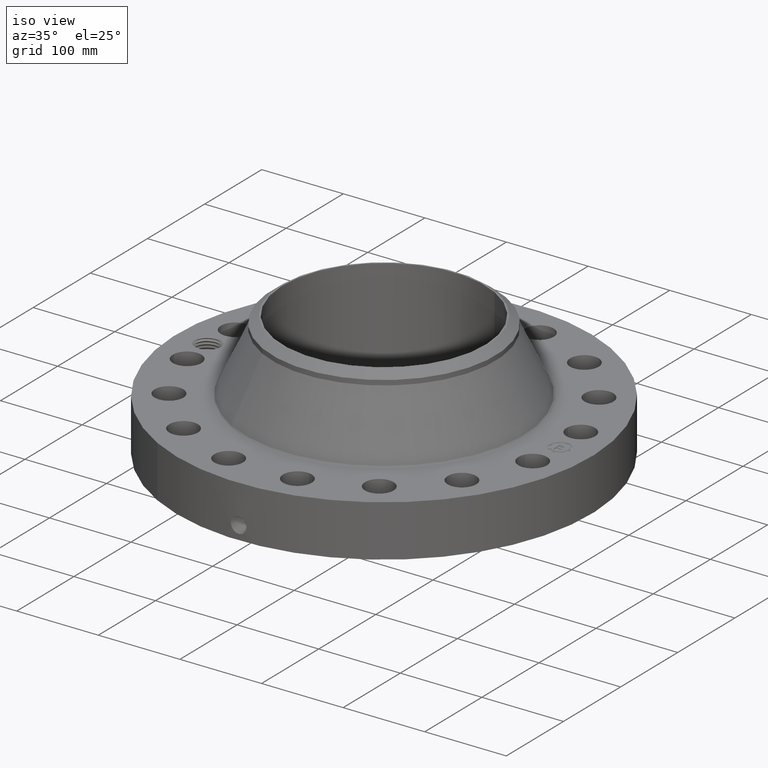
[diagram: clean part render]
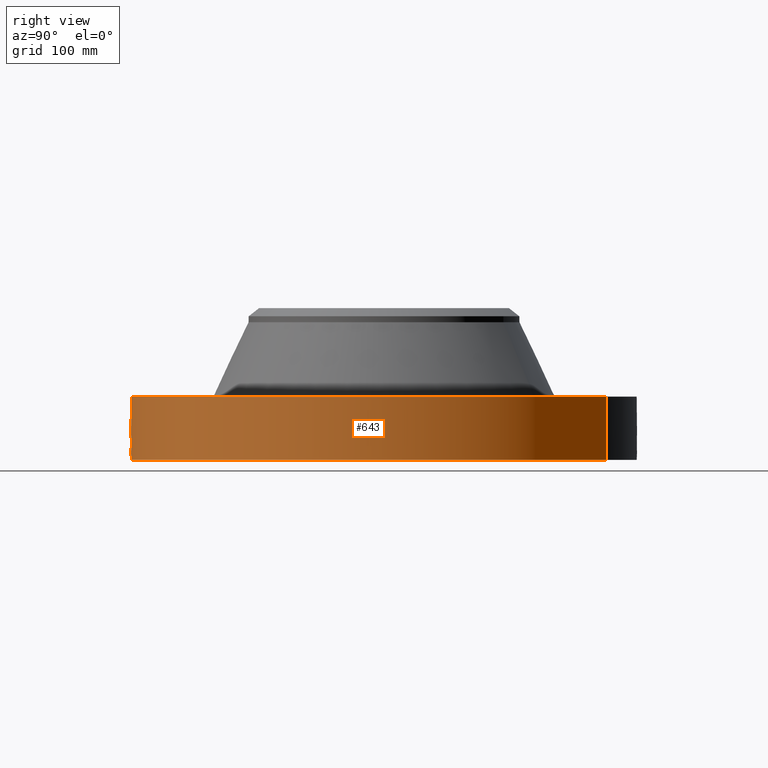
[diagram: tour spotlight — one face highlighted and labeled with its STEP entity id]
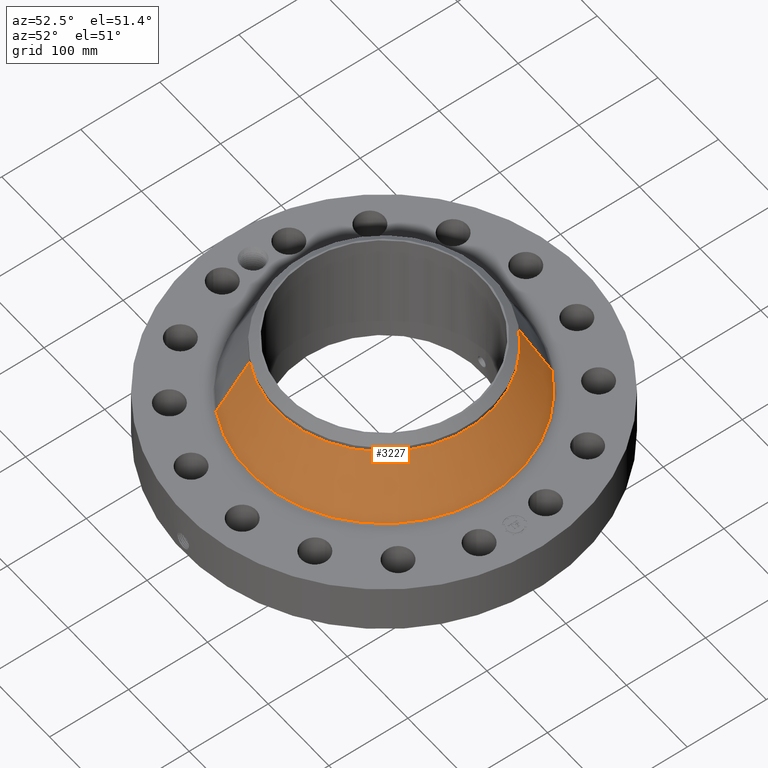
[diagram: tour spotlight — one face highlighted and labeled with its STEP entity id]
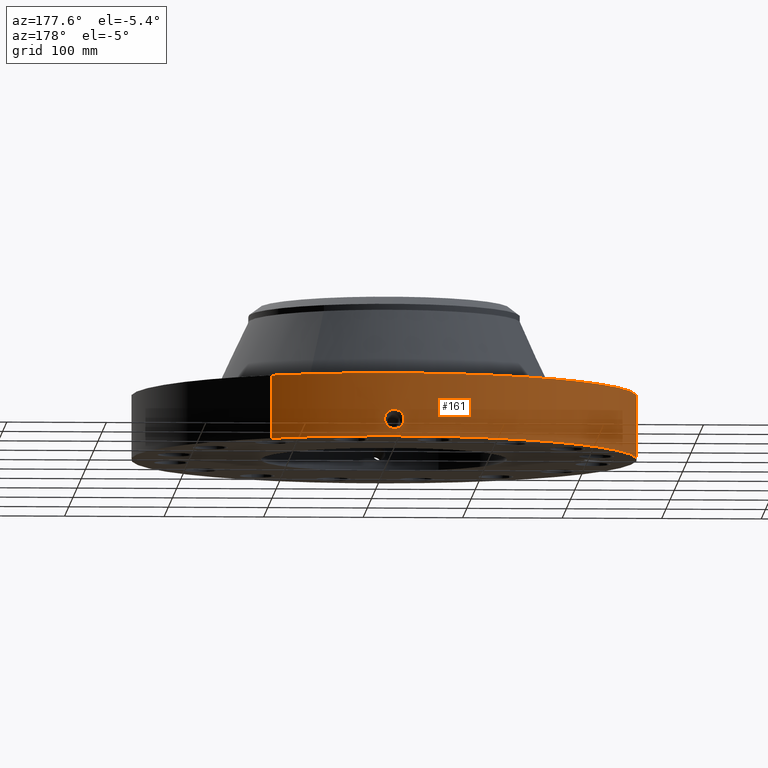
[diagram: tour spotlight — one face highlighted and labeled with its STEP entity id]
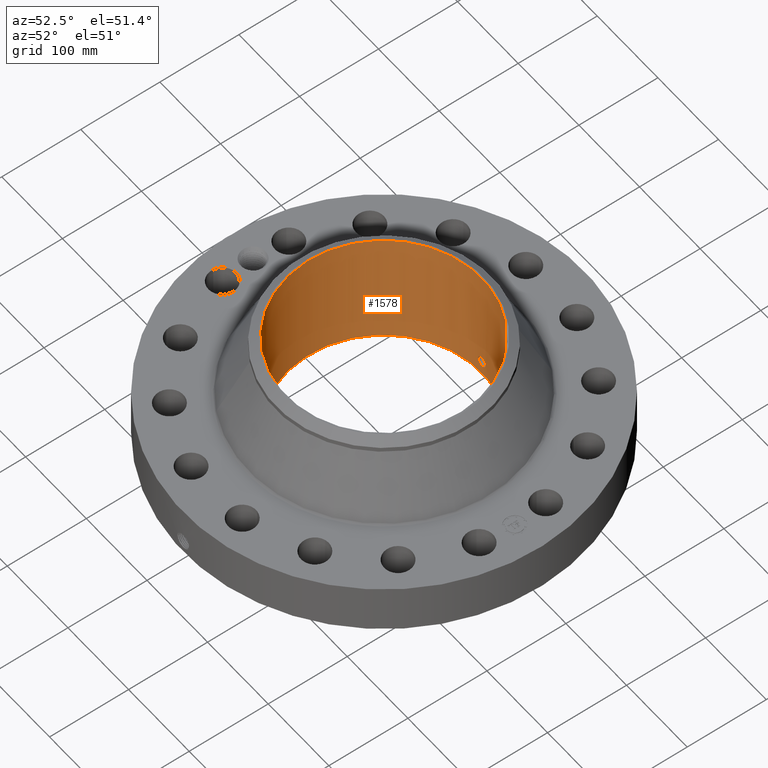
[diagram: tour spotlight — one face highlighted and labeled with its STEP entity id]
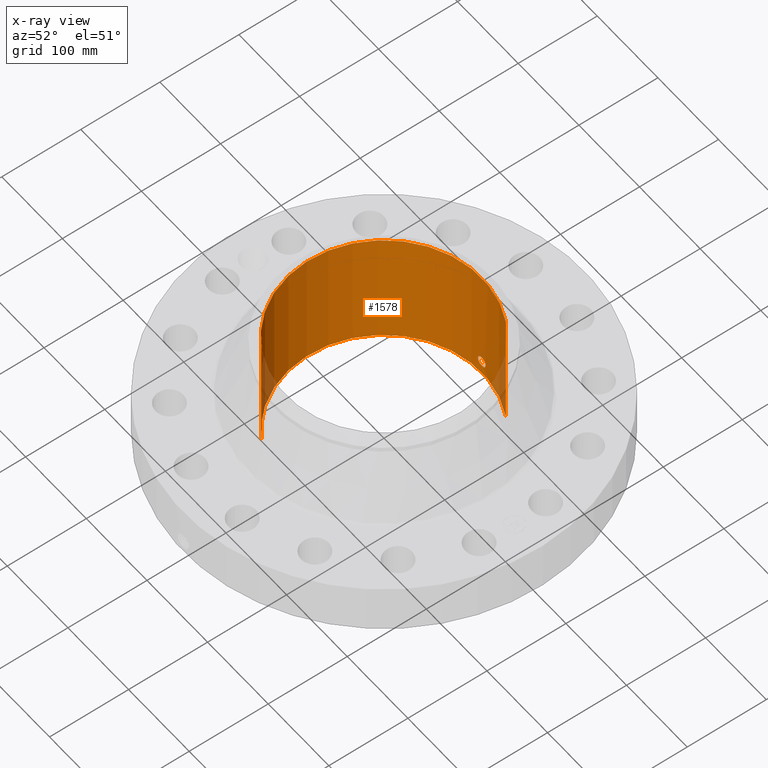
[diagram: x-ray of the same camera — body ghosted, this tour face saturated]
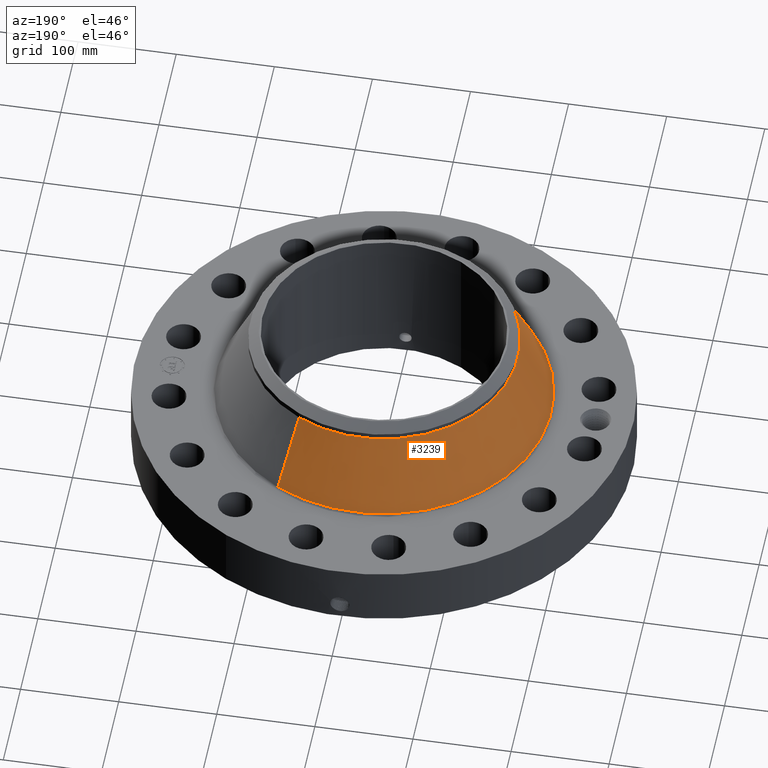
[diagram: tour spotlight — one face highlighted and labeled with its STEP entity id]
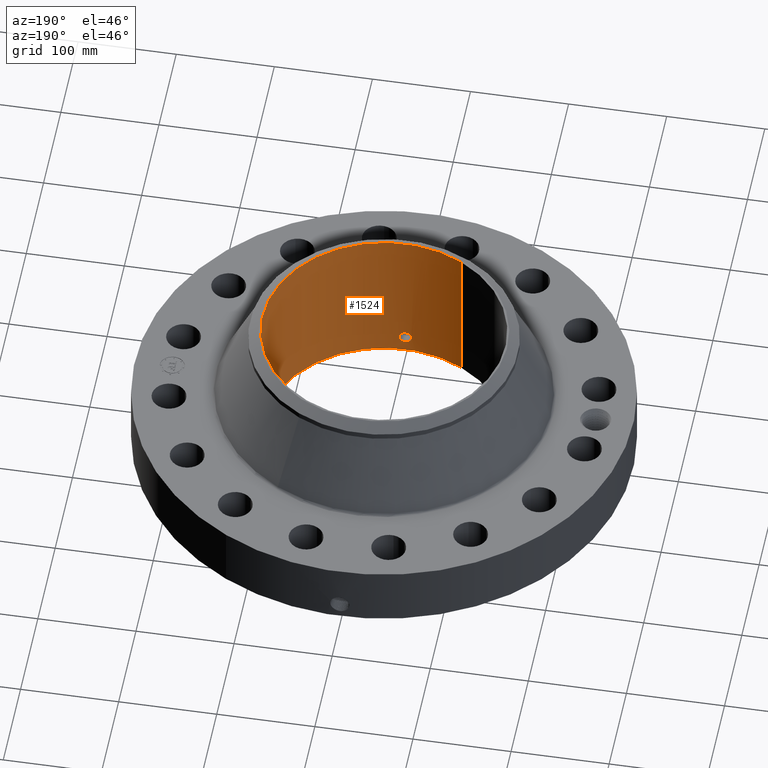
[diagram: tour spotlight — one face highlighted and labeled with its STEP entity id]
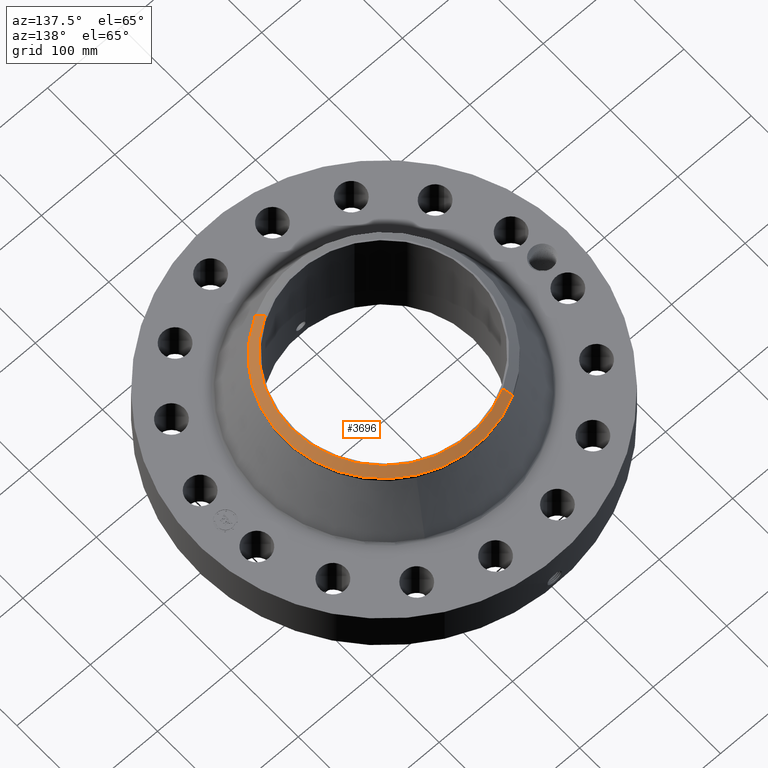
[diagram: tour spotlight — one face highlighted and labeled with its STEP entity id]
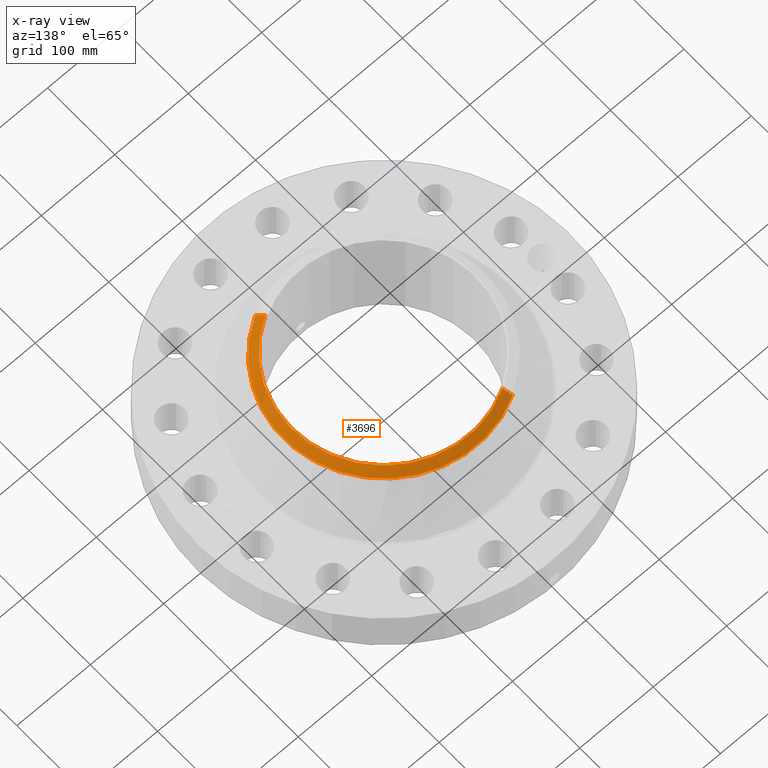
[diagram: x-ray of the same camera — body ghosted, this tour face saturated]
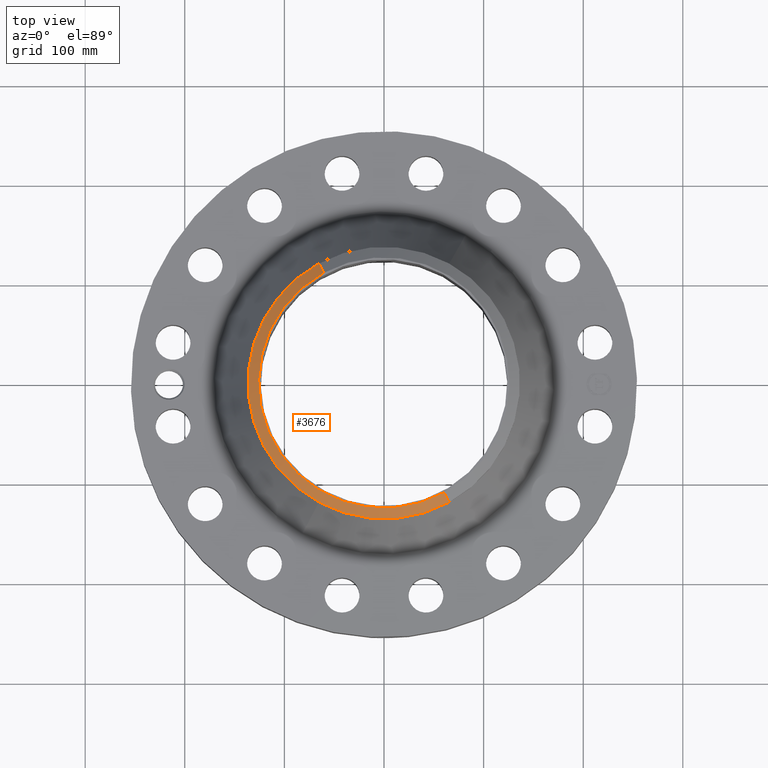
[diagram: tour spotlight — one face highlighted and labeled with its STEP entity id]
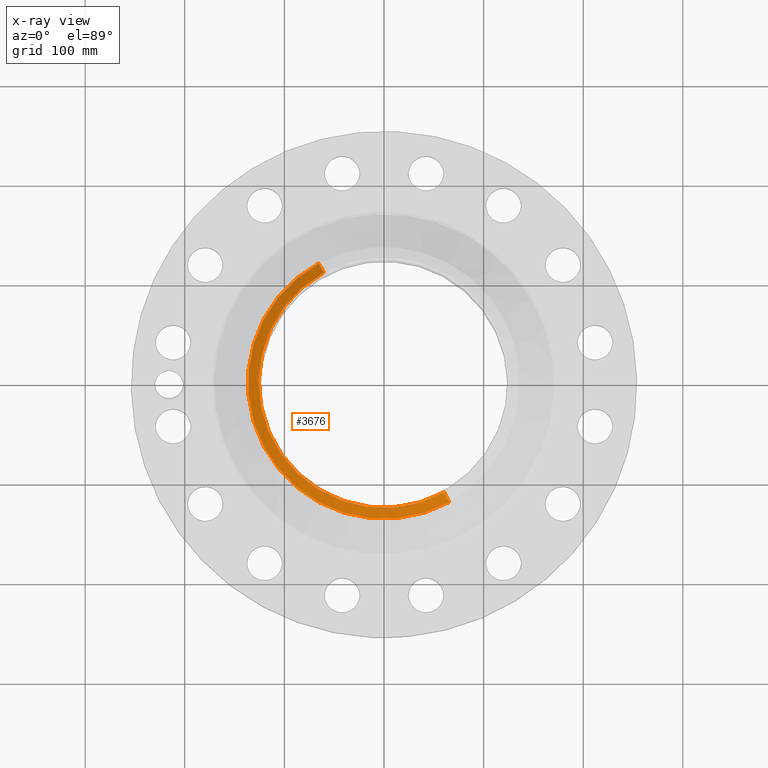
[diagram: x-ray of the same camera — body ghosted, this tour face saturated]
A machine part: a face-by-face anatomy tour. The part has 799 B-rep faces; the first image is the clean iso view, then the 8 largest visible faces are spotlighted one at a time (largest first), each with its STEP entity span.

Face 1 — right view, entity #643. In plain terms, the highlighted cylindrical surface (partial cylindrical patch) has radius 254 mm, axis along (0, 0, -1).
Definition (entity closure, byte-faithful):
#38=AXIS2_PLACEMENT_3D('Cylinder Axis2P3D',#35,#36,#37) ;
#169=AXIS2_PLACEMENT_3D('Circle Axis2P3D',#167,#168,$) ;
#547=AXIS2_PLACEMENT_3D('Circle Axis2P3D',#545,#546,$) ;
#35=CARTESIAN_POINT('Axis2P3D Location',(0.,0.,3.25000000001)) ;
#44=CARTESIAN_POINT('Vertex',(-4.79425538606,-8.77582561894,0.250000000001)) ;
#46=CARTESIAN_POINT('Vertex',(4.79425538606,8.77582561894,0.250000000001)) ;
#49=CARTESIAN_POINT('Line Origine',(-4.79425538606,-8.77582561894,1.50000000001)) ;
#53=CARTESIAN_POINT('Vertex',(-4.79425538606,-8.77582561894,2.75000000001)) ;
#60=CARTESIAN_POINT('Vertex',(4.79425538606,8.77582561894,2.75000000001)) ;
#63=CARTESIAN_POINT('Line Origine',(4.79425538606,8.77582561894,1.50000000001)) ;
#167=CARTESIAN_POINT('Axis2P3D Location',(0.,0.,0.250000000001)) ;
#545=CARTESIAN_POINT('Axis2P3D Location',(0.,0.,2.75000000001)) ;
#557=CARTESIAN_POINT('Control Point',(0.0572087903571,-9.99983635642,1.28946211996)) ;
#558=CARTESIAN_POINT('Control Point',(0.0385429305251,-9.99994314329,1.29252128305)) ;
#559=CARTESIAN_POINT('Control Point',(0.0196311006271,-9.99999861993,1.29408017662)) ;
#560=CARTESIAN_POINT('Control Point',(0.000716081786629,-9.9999999744,1.29411849926)) ;
#561=CARTESIAN_POINT('Vertex',(0.0571959374547,-9.99983668649,1.28946450802)) ;
#563=CARTESIAN_POINT('Vertex',(0.000715972764826,-9.99999997441,1.29411850972)) ;
#567=CARTESIAN_POINT('Control Point',(0.0571958405082,-9.99983643049,1.2894639435)) ;
#568=CARTESIAN_POINT('Control Point',(0.0969230263222,-9.9996092038,1.2847577243)) ;
#569=CARTESIAN_POINT('Control Point',(0.135932013826,-9.99914036429,1.27280908331)) ;
#570=CARTESIAN_POINT('Control Point',(0.171781099398,-9.99852445387,1.25447443216)) ;
#571=CARTESIAN_POINT('Vertex',(0.171781099398,-9.99852445387,1.25447443216)) ;
#575=CARTESIAN_POINT('Control Point',(0.0304791095549,-9.99995355113,0.531149434171)) ;
#576=CARTESIAN_POINT('Control Point',(0.0869240682533,-9.99978151112,0.538316765261)) ;
#577=CARTESIAN_POINT('Control Point',(0.141781990799,-9.99921604856,0.555924123744)) ;
#578=CARTESIAN_POINT('Control Point',(0.192346113245,-9.99830847247,0.58348462472)) ;
#579=CARTESIAN_POINT('Control Point',(0.265759526305,-9.99658103479,0.642901876031)) ;
#580=CARTESIAN_POINT('Control Point',(0.317976337837,-9.9949715316,0.719378431672)) ;
#581=CARTESIAN_POINT('Control Point',(0.335086714043,-9.99439872702,0.752047613138)) ;
#582=CARTESIAN_POINT('Control Point',(0.369056282311,-9.99321086053,0.840252235038)) ;
#583=CARTESIAN_POINT('Control Point',(0.376110289052,-9.99291610853,0.934477107144)) ;
#584=CARTESIAN_POINT('Control Point',(0.369959799517,-9.99316023875,0.992001440313)) ;
#585=CARTESIAN_POINT('Control Point',(0.340413446907,-9.99427827024,1.09120350967)) ;
#586=CARTESIAN_POINT('Control Point',(0.280678332334,-9.9961187959,1.17435913729)) ;
#587=CARTESIAN_POINT('Control Point',(0.248537284244,-9.99700573284,1.20702901608)) ;
#588=CARTESIAN_POINT('Control Point',(0.211772273186,-9.99783737971,1.23402135039)) ;
#589=CARTESIAN_POINT('Control Point',(0.171781099398,-9.99852445387,1.25447443216)) ;
#590=CARTESIAN_POINT('Vertex',(0.0304791095549,-9.99995355113,0.531149434171)) ;
#594=CARTESIAN_POINT('Control Point',(0.0304791095549,-9.99995355113,0.531149434171)) ;
#595=CARTESIAN_POINT('Control Point',(0.0203138280101,-9.99998453414,0.530868868491)) ;
#596=CARTESIAN_POINT('Control Point',(0.010142822142,-10.0000000028,0.53094410762)) ;
#597=CARTESIAN_POINT('Control Point',(-2.72878353386E-006,-10.,0.531374667805)) ;
#598=CARTESIAN_POINT('Vertex',(-2.72878354146E-006,-10.,0.531374667805)) ;
#602=CARTESIAN_POINT('Control Point',(-0.193088684827,-9.99813566424,0.586563835071)) ;
#603=CARTESIAN_POINT('Control Point',(-0.149184542095,-9.99898356164,0.561542966677)) ;
#604=CARTESIAN_POINT('Control Point',(-0.101153268022,-9.99965493009,0.543607028523)) ;
#605=CARTESIAN_POINT('Control Point',(-0.0508186828457,-9.99999998617,0.533531210518)) ;
#606=CARTESIAN_POINT('Control Point',(-2.72878355165E-006,-10.,0.531374667805)) ;
#607=CARTESIAN_POINT('Vertex',(-0.193088684827,-9.99813566424,0.586563835071)) ;
#611=CARTESIAN_POINT('Control Point',(-0.193088684827,-9.99813566424,0.586563835071)) ;
#612=CARTESIAN_POINT('Control Point',(-0.22200236607,-9.99757726967,0.603041673926)) ;
#613=CARTESIAN_POINT('Control Point',(-0.249242458499,-9.99694663764,0.622399687612)) ;
#614=CARTESIAN_POINT('Control Point',(-0.274404324275,-9.9962756441,0.644458262444)) ;
#615=CARTESIAN_POINT('Control Point',(-0.341053091543,-9.99430729828,0.716427952042)) ;
#616=CARTESIAN_POINT('Control Point',(-0.383384402225,-9.99268352973,0.806296315222)) ;
#617=CARTESIAN_POINT('Control Point',(-0.398208488589,-9.992055228,0.870788230889)) ;
#618=CARTESIAN_POINT('Control Point',(-0.398820868103,-9.9920728064,0.997725505462)) ;
#619=CARTESIAN_POINT('Control Point',(-0.349108773991,-9.99395183229,1.11278780639)) ;
#620=CARTESIAN_POINT('Control Point',(-0.314057457436,-9.99519357458,1.16248017222)) ;
#621=CARTESIAN_POINT('Control Point',(-0.235623947196,-9.99747709452,1.23687454099)) ;
#622=CARTESIAN_POINT('Control Point',(-0.138518371338,-9.99918909735,1.27948531937)) ;
#623=CARTESIAN_POINT('Control Point',(-0.0927588070752,-9.99973433444,1.29155503955)) ;
#624=CARTESIAN_POINT('Control Point',(-0.0460961964384,-10.0000001193,1.29641422489)) ;
#625=CARTESIAN_POINT('Control Point',(2.58579355292E-005,-10.,1.29415298432)) ;
#626=CARTESIAN_POINT('Vertex',(2.5857935539E-005,-10.,1.29415298432)) ;
#630=CARTESIAN_POINT('Control Point',(0.000715972754869,-9.99999997441,1.2941185097)) ;
#631=CARTESIAN_POINT('Control Point',(0.000370939523204,-9.99999999911,1.29413606591)) ;
#632=CARTESIAN_POINT('Control Point',(2.58579410707E-005,-10.,1.29415298431)) ;
#36=DIRECTION('Axis2P3D Direction',(0.,0.,-0.0393700787402)) ;
#37=DIRECTION('Axis2P3D XDirection',(0.0188750212049,0.0345504945626,0.)) ;
#50=DIRECTION('Vector Direction',(0.,0.,-0.0393700787402)) ;
#64=DIRECTION('Vector Direction',(0.,0.,-0.0393700787402)) ;
#168=DIRECTION('Axis2P3D Direction',(0.,0.,-0.0393700787402)) ;
#546=DIRECTION('Axis2P3D Direction',(0.,0.,-0.0393700787402)) ;
#51=VECTOR('Line Direction',#50,0.0393700787402) ;
#65=VECTOR('Line Direction',#64,0.0393700787402) ;
#551=ORIENTED_EDGE('',*,*,#171,.F.) ;
#552=ORIENTED_EDGE('',*,*,#67,.T.) ;
#553=ORIENTED_EDGE('',*,*,#549,.T.) ;
#554=ORIENTED_EDGE('',*,*,#55,.F.) ;
#635=ORIENTED_EDGE('',*,*,#565,.F.) ;
#636=ORIENTED_EDGE('',*,*,#573,.T.) ;
#637=ORIENTED_EDGE('',*,*,#592,.F.) ;
#638=ORIENTED_EDGE('',*,*,#600,.T.) ;
#639=ORIENTED_EDGE('',*,*,#609,.F.) ;
#640=ORIENTED_EDGE('',*,*,#628,.T.) ;
#641=ORIENTED_EDGE('',*,*,#633,.F.) ;
#642=FACE_BOUND('',#634,.T.) ;
#643=ADVANCED_FACE('PartBody',(#555,#642),#39,.T.) ;
#556=B_SPLINE_CURVE_WITH_KNOTS('',3,(#557,#558,#559,#560),.UNSPECIFIED.,.F.,.U.,(4,4),(4.42284677538,6.52129611799),.UNSPECIFIED.) ;
#566=B_SPLINE_CURVE_WITH_KNOTS('',3,(#567,#568,#569,#570),.UNSPECIFIED.,.F.,.U.,(4,4),(0.,4.49502347419),.UNSPECIFIED.) ;
#574=B_SPLINE_CURVE_WITH_KNOTS('',5,(#575,#576,#577,#578,#579,#580,#581,#582,#583,#584,#585,#586,#587,#588,#589),.UNSPECIFIED.,.F.,.U.,(6,3,3,3,6),(0.,9.88848366052,16.4590866122,26.8430280879,35.2003434392),.UNSPECIFIED.) ;
#593=B_SPLINE_CURVE_WITH_KNOTS('',3,(#594,#595,#596,#597),.UNSPECIFIED.,.F.,.U.,(4,4),(0.,1.0603287254),.UNSPECIFIED.) ;
#601=B_SPLINE_CURVE_WITH_KNOTS('',4,(#602,#603,#604,#605,#606),.UNSPECIFIED.,.F.,.U.,(5,5),(0.,7.08114865541),.UNSPECIFIED.) ;
#610=B_SPLINE_CURVE_WITH_KNOTS('',5,(#611,#612,#613,#614,#615,#616,#617,#618,#619,#620,#621,#622,#623,#624,#625),.UNSPECIFIED.,.F.,.U.,(6,3,3,3,6),(0.,5.82923559638,17.1276621437,27.7869785433,36.4081471789),.UNSPECIFIED.) ;
#629=B_SPLINE_CURVE_WITH_KNOTS('',2,(#630,#631,#632),.UNSPECIFIED.,.F.,.U.,(3,3),(1.03888409227,1.06468525564),.UNSPECIFIED.) ;
#170=CIRCLE('generated circle',#169,10.) ;
#548=CIRCLE('generated circle',#547,10.) ;
#39=CYLINDRICAL_SURFACE('generated cylinder',#38,10.) ;
#55=EDGE_CURVE('',#45,#54,#52,.F.) ;
#67=EDGE_CURVE('',#47,#61,#66,.F.) ;
#171=EDGE_CURVE('',#47,#45,#170,.T.) ;
#549=EDGE_CURVE('',#61,#54,#548,.T.) ;
#565=EDGE_CURVE('',#562,#564,#556,.T.) ;
#573=EDGE_CURVE('',#562,#572,#566,.T.) ;
#592=EDGE_CURVE('',#591,#572,#574,.T.) ;
#600=EDGE_CURVE('',#591,#599,#593,.T.) ;
#609=EDGE_CURVE('',#608,#599,#601,.T.) ;
#628=EDGE_CURVE('',#608,#627,#610,.T.) ;
#633=EDGE_CURVE('',#564,#627,#629,.T.) ;
#550=EDGE_LOOP('',(#551,#552,#553,#554)) ;
#634=EDGE_LOOP('',(#635,#636,#637,#638,#639,#640,#641)) ;
#555=FACE_OUTER_BOUND('',#550,.T.) ;
#52=LINE('Line',#49,#51) ;
#66=LINE('Line',#63,#65) ;
#45=VERTEX_POINT('',#44) ;
#47=VERTEX_POINT('',#46) ;
#54=VERTEX_POINT('',#53) ;
#61=VERTEX_POINT('',#60) ;
#562=VERTEX_POINT('',#561) ;
#564=VERTEX_POINT('',#563) ;
#572=VERTEX_POINT('',#571) ;
#591=VERTEX_POINT('',#590) ;
#599=VERTEX_POINT('',#598) ;
#608=VERTEX_POINT('',#607) ;
#627=VERTEX_POINT('',#626) ;

Face 2 — auxiliary view, entity #3227. In plain terms, the highlighted conical surface has half-angle 25.061 deg.
Definition (entity closure, byte-faithful):
#2420=AXIS2_PLACEMENT_3D('Circle Axis2P3D',#2418,#2419,$) ;
#3200=AXIS2_PLACEMENT_3D('Cone Axis2P3D',#3197,#3198,#3199) ;
#3211=AXIS2_PLACEMENT_3D('Circle Axis2P3D',#3209,#3210,$) ;
#2415=CARTESIAN_POINT('Vertex',(3.22061577254,5.89529762799,2.81917027635)) ;
#2418=CARTESIAN_POINT('Axis2P3D Location',(0.,0.,2.81917027635)) ;
#2422=CARTESIAN_POINT('Vertex',(-3.22061577254,-5.89529762799,2.81917027635)) ;
#3197=CARTESIAN_POINT('Axis2P3D Location',(0.,0.,5.69053548147)) ;
#3202=CARTESIAN_POINT('Line Origine',(2.89876402128,5.30615194909,4.25485287891)) ;
#3206=CARTESIAN_POINT('Vertex',(2.57691227001,4.71700627018,5.69053548147)) ;
#3209=CARTESIAN_POINT('Axis2P3D Location',(0.,0.,5.69053548147)) ;
#3213=CARTESIAN_POINT('Vertex',(-2.57691227001,-4.71700627018,5.69053548147)) ;
#3216=CARTESIAN_POINT('Line Origine',(-2.89876402128,-5.30615194909,4.25485287891)) ;
#2419=DIRECTION('Axis2P3D Direction',(0.,0.,-0.0393700787402)) ;
#3198=DIRECTION('Axis2P3D Direction',(0.,0.,-0.0393700787402)) ;
#3199=DIRECTION('Axis2P3D XDirection',(-0.0188750212049,-0.0345504945626,0.)) ;
#3203=DIRECTION('Vector Direction',(0.00799510093218,0.0146349340902,-0.0356637093593)) ;
#3210=DIRECTION('Axis2P3D Direction',(0.,0.,-0.0393700787402)) ;
#3217=DIRECTION('Vector Direction',(-0.00799510093218,-0.0146349340902,-0.0356637093593)) ;
#3204=VECTOR('Line Direction',#3203,0.0393700787402) ;
#3218=VECTOR('Line Direction',#3217,0.0393700787402) ;
#3222=ORIENTED_EDGE('',*,*,#2424,.F.) ;
#3223=ORIENTED_EDGE('',*,*,#3208,.T.) ;
#3224=ORIENTED_EDGE('',*,*,#3215,.T.) ;
#3225=ORIENTED_EDGE('',*,*,#3220,.F.) ;
#3227=ADVANCED_FACE('PartBody',(#3226),#3201,.T.) ;
#2421=CIRCLE('generated circle',#2420,6.71765584687) ;
#3212=CIRCLE('generated circle',#3211,5.37500000002) ;
#3201=CONICAL_SURFACE('Cone',#3200,5.37500000002,0.437394874199) ;
#2424=EDGE_CURVE('',#2416,#2423,#2421,.T.) ;
#3208=EDGE_CURVE('',#2416,#3207,#3205,.F.) ;
#3215=EDGE_CURVE('',#3207,#3214,#3212,.T.) ;
#3220=EDGE_CURVE('',#2423,#3214,#3219,.F.) ;
#3221=EDGE_LOOP('',(#3222,#3223,#3224,#3225)) ;
#3226=FACE_OUTER_BOUND('',#3221,.T.) ;
#3205=LINE('Line',#3202,#3204) ;
#3219=LINE('Line',#3216,#3218) ;
#2416=VERTEX_POINT('',#2415) ;
#2423=VERTEX_POINT('',#2422) ;
#3207=VERTEX_POINT('',#3206) ;
#3214=VERTEX_POINT('',#3213) ;

Face 3 — auxiliary view, entity #161. In plain terms, the highlighted cylindrical surface (partial cylindrical patch) has radius 254 mm, axis along (0, 0, -1).
Definition (entity closure, byte-faithful):
#38=AXIS2_PLACEMENT_3D('Cylinder Axis2P3D',#35,#36,#37) ;
#42=AXIS2_PLACEMENT_3D('Circle Axis2P3D',#40,#41,$) ;
#58=AXIS2_PLACEMENT_3D('Circle Axis2P3D',#56,#57,$) ;
#35=CARTESIAN_POINT('Axis2P3D Location',(0.,0.,3.25000000001)) ;
#40=CARTESIAN_POINT('Axis2P3D Location',(0.,0.,0.250000000001)) ;
#44=CARTESIAN_POINT('Vertex',(-4.79425538606,-8.77582561894,0.250000000001)) ;
#46=CARTESIAN_POINT('Vertex',(4.79425538606,8.77582561894,0.250000000001)) ;
#49=CARTESIAN_POINT('Line Origine',(-4.79425538606,-8.77582561894,1.50000000001)) ;
#53=CARTESIAN_POINT('Vertex',(-4.79425538606,-8.77582561894,2.75000000001)) ;
#56=CARTESIAN_POINT('Axis2P3D Location',(0.,0.,2.75000000001)) ;
#60=CARTESIAN_POINT('Vertex',(4.79425538606,8.77582561894,2.75000000001)) ;
#63=CARTESIAN_POINT('Line Origine',(4.79425538606,8.77582561894,1.50000000001)) ;
#75=CARTESIAN_POINT('Control Point',(-0.0572087903623,9.99983635642,1.28946211995)) ;
#76=CARTESIAN_POINT('Control Point',(-0.038542930521,9.99994314329,1.29252128305)) ;
#77=CARTESIAN_POINT('Control Point',(-0.0196311006209,9.99999861993,1.29408017662)) ;
#78=CARTESIAN_POINT('Control Point',(-0.000716081786808,9.9999999744,1.29411849926)) ;
#79=CARTESIAN_POINT('Vertex',(-0.0571959374547,9.99983668649,1.28946450802)) ;
#81=CARTESIAN_POINT('Vertex',(-0.000715972764827,9.99999997441,1.29411850972)) ;
#85=CARTESIAN_POINT('Control Point',(-0.0571958405082,9.99983643049,1.2894639435)) ;
#86=CARTESIAN_POINT('Control Point',(-0.0969230263198,9.9996092038,1.2847577243)) ;
#87=CARTESIAN_POINT('Control Point',(-0.135932013828,9.99914036429,1.27280908331)) ;
#88=CARTESIAN_POINT('Control Point',(-0.171781099398,9.99852445387,1.25447443216)) ;
#89=CARTESIAN_POINT('Vertex',(-0.171781099398,9.99852445387,1.25447443216)) ;
#93=CARTESIAN_POINT('Control Point',(-0.0304791095549,9.99995355113,0.531149434171)) ;
#94=CARTESIAN_POINT('Control Point',(-0.0869240682089,9.99978151112,0.538316765256)) ;
#95=CARTESIAN_POINT('Control Point',(-0.141781990712,9.99921604856,0.55592412372)) ;
#96=CARTESIAN_POINT('Control Point',(-0.192346113027,9.99830847247,0.583484624591)) ;
#97=CARTESIAN_POINT('Control Point',(-0.265759526084,9.99658103479,0.642901875811)) ;
#98=CARTESIAN_POINT('Control Point',(-0.317976337652,9.99497153161,0.719378431361)) ;
#99=CARTESIAN_POINT('Control Point',(-0.33508671391,9.99439872702,0.752047612856)) ;
#100=CARTESIAN_POINT('Control Point',(-0.369056282252,9.99321086053,0.840252234737)) ;
#101=CARTESIAN_POINT('Control Point',(-0.376110289066,9.99291610853,0.934477106848)) ;
#102=CARTESIAN_POINT('Control Point',(-0.369959799591,9.99316023875,0.992001439942)) ;
#103=CARTESIAN_POINT('Control Point',(-0.340413447041,9.99427827023,1.09120350942)) ;
#104=CARTESIAN_POINT('Control Point',(-0.280678332466,9.9961187959,1.17435913716)) ;
#105=CARTESIAN_POINT('Control Point',(-0.248537284365,9.99700573284,1.20702901599)) ;
#106=CARTESIAN_POINT('Control Point',(-0.211772273251,9.99783737971,1.23402135036)) ;
#107=CARTESIAN_POINT('Control Point',(-0.171781099398,9.99852445387,1.25447443216)) ;
#108=CARTESIAN_POINT('Vertex',(-0.0304791095549,9.99995355113,0.531149434171)) ;
#112=CARTESIAN_POINT('Control Point',(-0.0304791095549,9.99995355113,0.531149434171)) ;
#113=CARTESIAN_POINT('Control Point',(-0.0203138280101,9.99998453414,0.530868868491)) ;
#114=CARTESIAN_POINT('Control Point',(-0.010142822142,10.0000000028,0.53094410762)) ;
#115=CARTESIAN_POINT('Control Point',(2.72878355928E-006,10.,0.531374667805)) ;
#116=CARTESIAN_POINT('Vertex',(2.7287835403E-006,10.,0.531374667805)) ;
#120=CARTESIAN_POINT('Control Point',(0.193088684827,9.99813566424,0.586563835071)) ;
#121=CARTESIAN_POINT('Control Point',(0.149184542092,9.99898356164,0.561542966675)) ;
#122=CARTESIAN_POINT('Control Point',(0.101153268022,9.99965493009,0.543607028522)) ;
#123=CARTESIAN_POINT('Control Point',(0.0508186828489,9.99999998617,0.533531210518)) ;
#124=CARTESIAN_POINT('Control Point',(2.72878355927E-006,10.,0.531374667805)) ;
#125=CARTESIAN_POINT('Vertex',(0.193088684827,9.99813566424,0.586563835071)) ;
#129=CARTESIAN_POINT('Control Point',(0.193088684827,9.99813566424,0.586563835071)) ;
#130=CARTESIAN_POINT('Control Point',(0.222002366156,9.99757726967,0.603041673975)) ;
#131=CARTESIAN_POINT('Control Point',(0.249242458661,9.99694663764,0.622399687727)) ;
#132=CARTESIAN_POINT('Control Point',(0.274404324443,9.9962756441,0.644458262588)) ;
#133=CARTESIAN_POINT('Control Point',(0.341053091753,9.99430729828,0.716427952335)) ;
#134=CARTESIAN_POINT('Control Point',(0.383384402384,9.99268352973,0.806296315693)) ;
#135=CARTESIAN_POINT('Control Point',(0.398208488645,9.99205522799,0.870788231226)) ;
#136=CARTESIAN_POINT('Control Point',(0.398820868035,9.9920728064,0.997725505823)) ;
#137=CARTESIAN_POINT('Control Point',(0.349108773796,9.9939518323,1.11278780671)) ;
#138=CARTESIAN_POINT('Control Point',(0.31405745715,9.99519357459,1.16248017255)) ;
#139=CARTESIAN_POINT('Control Point',(0.235623946911,9.99747709452,1.23687454117)) ;
#140=CARTESIAN_POINT('Control Point',(0.138518371119,9.99918909735,1.27948531942)) ;
#141=CARTESIAN_POINT('Control Point',(0.092758806898,9.99973433444,1.29155503957)) ;
#142=CARTESIAN_POINT('Control Point',(0.0460961963509,10.0000001193,1.29641422489)) ;
#143=CARTESIAN_POINT('Control Point',(-2.5857935566E-005,10.,1.29415298432)) ;
#144=CARTESIAN_POINT('Vertex',(-2.58579355401E-005,10.,1.29415298432)) ;
#148=CARTESIAN_POINT('Control Point',(-0.000715972754886,9.99999997441,1.2941185097)) ;
#149=CARTESIAN_POINT('Control Point',(-0.000370939523228,9.99999999911,1.29413606591)) ;
#150=CARTESIAN_POINT('Control Point',(-2.58579411007E-005,10.,1.29415298431)) ;
#36=DIRECTION('Axis2P3D Direction',(0.,0.,-0.0393700787402)) ;
#37=DIRECTION('Axis2P3D XDirection',(0.0188750212049,0.0345504945626,0.)) ;
#41=DIRECTION('Axis2P3D Direction',(0.,0.,-0.0393700787402)) ;
#50=DIRECTION('Vector Direction',(0.,0.,-0.0393700787402)) ;
#57=DIRECTION('Axis2P3D Direction',(0.,0.,-0.0393700787402)) ;
#64=DIRECTION('Vector Direction',(0.,0.,-0.0393700787402)) ;
#51=VECTOR('Line Direction',#50,0.0393700787402) ;
#65=VECTOR('Line Direction',#64,0.0393700787402) ;
#69=ORIENTED_EDGE('',*,*,#48,.F.) ;
#70=ORIENTED_EDGE('',*,*,#55,.T.) ;
#71=ORIENTED_EDGE('',*,*,#62,.T.) ;
#72=ORIENTED_EDGE('',*,*,#67,.F.) ;
#153=ORIENTED_EDGE('',*,*,#83,.F.) ;
#154=ORIENTED_EDGE('',*,*,#91,.T.) ;
#155=ORIENTED_EDGE('',*,*,#110,.F.) ;
#156=ORIENTED_EDGE('',*,*,#118,.T.) ;
#157=ORIENTED_EDGE('',*,*,#127,.F.) ;
#158=ORIENTED_EDGE('',*,*,#146,.T.) ;
#159=ORIENTED_EDGE('',*,*,#151,.F.) ;
#160=FACE_BOUND('',#152,.T.) ;
#161=ADVANCED_FACE('PartBody',(#73,#160),#39,.T.) ;
#74=B_SPLINE_CURVE_WITH_KNOTS('',3,(#75,#76,#77,#78),.UNSPECIFIED.,.F.,.U.,(4,4),(4.4228467722,6.52129611388),.UNSPECIFIED.) ;
#84=B_SPLINE_CURVE_WITH_KNOTS('',3,(#85,#86,#87,#88),.UNSPECIFIED.,.F.,.U.,(4,4),(0.,4.49502347392),.UNSPECIFIED.) ;
#92=B_SPLINE_CURVE_WITH_KNOTS('',5,(#93,#94,#95,#96,#97,#98,#99,#100,#101,#102,#103,#104,#105,#106,#107),.UNSPECIFIED.,.F.,.U.,(6,3,3,3,6),(0.,9.88848365274,16.4590866018,26.8430280813,35.2003434463),.UNSPECIFIED.) ;
#111=B_SPLINE_CURVE_WITH_KNOTS('',3,(#112,#113,#114,#115),.UNSPECIFIED.,.F.,.U.,(4,4),(0.,1.0603287254),.UNSPECIFIED.) ;
#119=B_SPLINE_CURVE_WITH_KNOTS('',4,(#120,#121,#122,#123,#124),.UNSPECIFIED.,.F.,.U.,(5,5),(0.,7.08114865587),.UNSPECIFIED.) ;
#128=B_SPLINE_CURVE_WITH_KNOTS('',5,(#129,#130,#131,#132,#133,#134,#135,#136,#137,#138,#139,#140,#141,#142,#143),.UNSPECIFIED.,.F.,.U.,(6,3,3,3,6),(0.,5.82923561373,17.1276621672,27.7869785645,36.4081471838),.UNSPECIFIED.) ;
#147=B_SPLINE_CURVE_WITH_KNOTS('',2,(#148,#149,#150),.UNSPECIFIED.,.F.,.U.,(3,3),(1.03888409227,1.06468525564),.UNSPECIFIED.) ;
#43=CIRCLE('generated circle',#42,10.) ;
#59=CIRCLE('generated circle',#58,10.) ;
#39=CYLINDRICAL_SURFACE('generated cylinder',#38,10.) ;
#48=EDGE_CURVE('',#45,#47,#43,.T.) ;
#55=EDGE_CURVE('',#45,#54,#52,.F.) ;
#62=EDGE_CURVE('',#54,#61,#59,.T.) ;
#67=EDGE_CURVE('',#47,#61,#66,.F.) ;
#83=EDGE_CURVE('',#80,#82,#74,.T.) ;
#91=EDGE_CURVE('',#80,#90,#84,.T.) ;
#110=EDGE_CURVE('',#109,#90,#92,.T.) ;
#118=EDGE_CURVE('',#109,#117,#111,.T.) ;
#127=EDGE_CURVE('',#126,#117,#119,.T.) ;
#146=EDGE_CURVE('',#126,#145,#128,.T.) ;
#151=EDGE_CURVE('',#82,#145,#147,.T.) ;
#68=EDGE_LOOP('',(#69,#70,#71,#72)) ;
#152=EDGE_LOOP('',(#153,#154,#155,#156,#157,#158,#159)) ;
#73=FACE_OUTER_BOUND('',#68,.T.) ;
#52=LINE('Line',#49,#51) ;
#66=LINE('Line',#63,#65) ;
#45=VERTEX_POINT('',#44) ;
#47=VERTEX_POINT('',#46) ;
#54=VERTEX_POINT('',#53) ;
#61=VERTEX_POINT('',#60) ;
#80=VERTEX_POINT('',#79) ;
#82=VERTEX_POINT('',#81) ;
#90=VERTEX_POINT('',#89) ;
#109=VERTEX_POINT('',#108) ;
#117=VERTEX_POINT('',#116) ;
#126=VERTEX_POINT('',#125) ;
#145=VERTEX_POINT('',#144) ;

Face 4 — auxiliary view, entity #1578. An x-ray twin of the same camera follows (body ghosted, this face saturated) — the face is partly hidden behind the body. In plain terms, the highlighted cylindrical surface (partial cylindrical patch) has radius 123.825 mm, axis along (0, 0, -1).
Definition (entity closure, byte-faithful):
#267=AXIS2_PLACEMENT_3D('Circle Axis2P3D',#265,#266,$) ;
#1455=AXIS2_PLACEMENT_3D('Cylinder Axis2P3D',#1452,#1453,#1454) ;
#1527=AXIS2_PLACEMENT_3D('Circle Axis2P3D',#1525,#1526,$) ;
#260=CARTESIAN_POINT('Vertex',(2.3371995007,4.27821498923,0.250000000001)) ;
#262=CARTESIAN_POINT('Vertex',(-2.3371995007,-4.27821498923,0.250000000001)) ;
#265=CARTESIAN_POINT('Axis2P3D Location',(0.,0.,0.250000000001)) ;
#1452=CARTESIAN_POINT('Axis2P3D Location',(0.,0.,3.25000000001)) ;
#1461=CARTESIAN_POINT('Vertex',(2.3371995007,4.27821498923,6.25000000002)) ;
#1463=CARTESIAN_POINT('Vertex',(-2.3371995007,-4.27821498923,6.25000000002)) ;
#1466=CARTESIAN_POINT('Line Origine',(2.3371995007,4.27821498923,3.25000000001)) ;
#1471=CARTESIAN_POINT('Line Origine',(-2.3371995007,-4.27821498923,3.25000000001)) ;
#1525=CARTESIAN_POINT('Axis2P3D Location',(0.,0.,6.25000000002)) ;
#1537=CARTESIAN_POINT('Control Point',(0.219395640473,4.87006063136,1.05985638466)) ;
#1538=CARTESIAN_POINT('Control Point',(0.206921744631,4.87062257885,1.08268969784)) ;
#1539=CARTESIAN_POINT('Control Point',(0.191478394815,4.87127828143,1.10389846204)) ;
#1540=CARTESIAN_POINT('Control Point',(0.173345566564,4.87197707092,1.12296984661)) ;
#1541=CARTESIAN_POINT('Control Point',(0.112139222272,4.87399811607,1.17244722733)) ;
#1542=CARTESIAN_POINT('Control Point',(0.0349864891715,4.87531118116,1.1959724494)) ;
#1543=CARTESIAN_POINT('Control Point',(-0.0195554396122,4.87540934404,1.19761228032)) ;
#1544=CARTESIAN_POINT('Control Point',(-0.124139352669,4.87396423206,1.17247244666)) ;
#1545=CARTESIAN_POINT('Control Point',(-0.203183379739,4.87097270785,1.09956667949)) ;
#1546=CARTESIAN_POINT('Control Point',(-0.23216181559,4.86949971364,1.05335497983)) ;
#1547=CARTESIAN_POINT('Control Point',(-0.255832360072,4.868286833,0.975197541655)) ;
#1548=CARTESIAN_POINT('Control Point',(-0.248297207578,4.86867260604,0.895806024515)) ;
#1549=CARTESIAN_POINT('Control Point',(-0.242063087924,4.86899647574,0.8692204153)) ;
#1550=CARTESIAN_POINT('Control Point',(-0.232324343008,4.86947819488,0.8438094466)) ;
#1551=CARTESIAN_POINT('Control Point',(-0.219395640473,4.87006063136,0.820143615352)) ;
#1552=CARTESIAN_POINT('Vertex',(0.219395640473,4.87006063136,1.05985638466)) ;
#1554=CARTESIAN_POINT('Vertex',(-0.219395640473,4.87006063136,0.820143615352)) ;
#1558=CARTESIAN_POINT('Control Point',(-0.219395640473,4.87006063136,0.820143615352)) ;
#1559=CARTESIAN_POINT('Control Point',(-0.206921744638,4.87062257885,0.797310302183)) ;
#1560=CARTESIAN_POINT('Control Point',(-0.191478394833,4.87127828143,0.776101537987)) ;
#1561=CARTESIAN_POINT('Control Point',(-0.173345566542,4.87197707092,0.757030153377)) ;
#1562=CARTESIAN_POINT('Control Point',(-0.112139222257,4.87399811607,0.707552772673)) ;
#1563=CARTESIAN_POINT('Control Point',(-0.0349864891698,4.87531118116,0.68402755061)) ;
#1564=CARTESIAN_POINT('Control Point',(0.0195554396075,4.87540934404,0.682387719689)) ;
#1565=CARTESIAN_POINT('Control Point',(0.124139352691,4.87396423206,0.707527553348)) ;
#1566=CARTESIAN_POINT('Control Point',(0.203183379774,4.87097270785,0.780433320548)) ;
#1567=CARTESIAN_POINT('Control Point',(0.232161815577,4.86949971364,0.826645020125)) ;
#1568=CARTESIAN_POINT('Control Point',(0.255832360068,4.868286833,0.904802458307)) ;
#1569=CARTESIAN_POINT('Control Point',(0.248297207583,4.86867260604,0.98419397545)) ;
#1570=CARTESIAN_POINT('Control Point',(0.242063087909,4.86899647574,1.01077958475)) ;
#1571=CARTESIAN_POINT('Control Point',(0.232324342998,4.86947819488,1.03619055343)) ;
#1572=CARTESIAN_POINT('Control Point',(0.219395640473,4.87006063136,1.05985638466)) ;
#266=DIRECTION('Axis2P3D Direction',(0.,0.,-0.0393700787402)) ;
#1453=DIRECTION('Axis2P3D Direction',(0.,0.,-0.0393700787402)) ;
#1454=DIRECTION('Axis2P3D XDirection',(-0.0188750212049,-0.0345504945626,0.)) ;
#1467=DIRECTION('Vector Direction',(0.,0.,-0.0393700787402)) ;
#1472=DIRECTION('Vector Direction',(0.,0.,-0.0393700787402)) ;
#1526=DIRECTION('Axis2P3D Direction',(0.,0.,-0.0393700787402)) ;
#1468=VECTOR('Line Direction',#1467,0.0393700787402) ;
#1473=VECTOR('Line Direction',#1472,0.0393700787402) ;
#1531=ORIENTED_EDGE('',*,*,#1529,.F.) ;
#1532=ORIENTED_EDGE('',*,*,#1475,.T.) ;
#1533=ORIENTED_EDGE('',*,*,#269,.T.) ;
#1534=ORIENTED_EDGE('',*,*,#1470,.F.) ;
#1575=ORIENTED_EDGE('',*,*,#1556,.F.) ;
#1576=ORIENTED_EDGE('',*,*,#1573,.F.) ;
#1577=FACE_BOUND('',#1574,.T.) ;
#1578=ADVANCED_FACE('PartBody',(#1535,#1577),#1456,.F.) ;
#1536=B_SPLINE_CURVE_WITH_KNOTS('',5,(#1537,#1538,#1539,#1540,#1541,#1542,#1543,#1544,#1545,#1546,#1547,#1548,#1549,#1550,#1551),.UNSPECIFIED.,.F.,.U.,(6,3,3,3,6),(0.,4.67413162129,14.0220348695,23.3720177471,28.2165713735),.UNSPECIFIED.) ;
#1557=B_SPLINE_CURVE_WITH_KNOTS('',5,(#1558,#1559,#1560,#1561,#1562,#1563,#1564,#1565,#1566,#1567,#1568,#1569,#1570,#1571,#1572),.UNSPECIFIED.,.F.,.U.,(6,3,3,3,6),(0.,4.67413161858,14.0220348671,23.372017749,28.2165713717),.UNSPECIFIED.) ;
#268=CIRCLE('generated circle',#267,4.87500000002) ;
#1528=CIRCLE('generated circle',#1527,4.87500000002) ;
#1456=CYLINDRICAL_SURFACE('generated cylinder',#1455,4.87500000002) ;
#269=EDGE_CURVE('',#263,#261,#268,.T.) ;
#1470=EDGE_CURVE('',#1462,#261,#1469,.T.) ;
#1475=EDGE_CURVE('',#1464,#263,#1474,.T.) ;
#1529=EDGE_CURVE('',#1464,#1462,#1528,.T.) ;
#1556=EDGE_CURVE('',#1553,#1555,#1536,.T.) ;
#1573=EDGE_CURVE('',#1555,#1553,#1557,.T.) ;
#1530=EDGE_LOOP('',(#1531,#1532,#1533,#1534)) ;
#1574=EDGE_LOOP('',(#1575,#1576)) ;
#1535=FACE_OUTER_BOUND('',#1530,.T.) ;
#1469=LINE('Line',#1466,#1468) ;
#1474=LINE('Line',#1471,#1473) ;
#261=VERTEX_POINT('',#260) ;
#263=VERTEX_POINT('',#262) ;
#1462=VERTEX_POINT('',#1461) ;
#1464=VERTEX_POINT('',#1463) ;
#1553=VERTEX_POINT('',#1552) ;
#1555=VERTEX_POINT('',#1554) ;

Face 5 — auxiliary view, entity #3239. In plain terms, the highlighted conical surface has half-angle 25.061 deg.
Definition (entity closure, byte-faithful):
#2439=AXIS2_PLACEMENT_3D('Circle Axis2P3D',#2437,#2438,$) ;
#3200=AXIS2_PLACEMENT_3D('Cone Axis2P3D',#3197,#3198,#3199) ;
#3230=AXIS2_PLACEMENT_3D('Circle Axis2P3D',#3228,#3229,$) ;
#2415=CARTESIAN_POINT('Vertex',(3.22061577254,5.89529762799,2.81917027635)) ;
#2422=CARTESIAN_POINT('Vertex',(-3.22061577254,-5.89529762799,2.81917027635)) ;
#2437=CARTESIAN_POINT('Axis2P3D Location',(0.,0.,2.81917027635)) ;
#3197=CARTESIAN_POINT('Axis2P3D Location',(0.,0.,5.69053548147)) ;
#3202=CARTESIAN_POINT('Line Origine',(2.89876402128,5.30615194909,4.25485287891)) ;
#3206=CARTESIAN_POINT('Vertex',(2.57691227001,4.71700627018,5.69053548147)) ;
#3213=CARTESIAN_POINT('Vertex',(-2.57691227001,-4.71700627018,5.69053548147)) ;
#3216=CARTESIAN_POINT('Line Origine',(-2.89876402128,-5.30615194909,4.25485287891)) ;
#3228=CARTESIAN_POINT('Axis2P3D Location',(0.,0.,5.69053548147)) ;
#2438=DIRECTION('Axis2P3D Direction',(0.,0.,-0.0393700787402)) ;
#3198=DIRECTION('Axis2P3D Direction',(0.,0.,-0.0393700787402)) ;
#3199=DIRECTION('Axis2P3D XDirection',(-0.0188750212049,-0.0345504945626,0.)) ;
#3203=DIRECTION('Vector Direction',(0.00799510093218,0.0146349340902,-0.0356637093593)) ;
#3217=DIRECTION('Vector Direction',(-0.00799510093218,-0.0146349340902,-0.0356637093593)) ;
#3229=DIRECTION('Axis2P3D Direction',(0.,0.,-0.0393700787402)) ;
#3204=VECTOR('Line Direction',#3203,0.0393700787402) ;
#3218=VECTOR('Line Direction',#3217,0.0393700787402) ;
#3234=ORIENTED_EDGE('',*,*,#2441,.F.) ;
#3235=ORIENTED_EDGE('',*,*,#3220,.T.) ;
#3236=ORIENTED_EDGE('',*,*,#3232,.T.) ;
#3237=ORIENTED_EDGE('',*,*,#3208,.F.) ;
#3239=ADVANCED_FACE('PartBody',(#3238),#3201,.T.) ;
#2440=CIRCLE('generated circle',#2439,6.71765584687) ;
#3231=CIRCLE('generated circle',#3230,5.37500000002) ;
#3201=CONICAL_SURFACE('Cone',#3200,5.37500000002,0.437394874199) ;
#2441=EDGE_CURVE('',#2423,#2416,#2440,.T.) ;
#3208=EDGE_CURVE('',#2416,#3207,#3205,.F.) ;
#3220=EDGE_CURVE('',#2423,#3214,#3219,.F.) ;
#3232=EDGE_CURVE('',#3214,#3207,#3231,.T.) ;
#3233=EDGE_LOOP('',(#3234,#3235,#3236,#3237)) ;
#3238=FACE_OUTER_BOUND('',#3233,.T.) ;
#3205=LINE('Line',#3202,#3204) ;
#3219=LINE('Line',#3216,#3218) ;
#2416=VERTEX_POINT('',#2415) ;
#2423=VERTEX_POINT('',#2422) ;
#3207=VERTEX_POINT('',#3206) ;
#3214=VERTEX_POINT('',#3213) ;

Face 6 — auxiliary view, entity #1524. In plain terms, the highlighted cylindrical surface (partial cylindrical patch) has radius 123.825 mm, axis along (0, 0, -1).
Definition (entity closure, byte-faithful):
#258=AXIS2_PLACEMENT_3D('Circle Axis2P3D',#256,#257,$) ;
#1455=AXIS2_PLACEMENT_3D('Cylinder Axis2P3D',#1452,#1453,#1454) ;
#1459=AXIS2_PLACEMENT_3D('Circle Axis2P3D',#1457,#1458,$) ;
#256=CARTESIAN_POINT('Axis2P3D Location',(0.,0.,0.250000000001)) ;
#260=CARTESIAN_POINT('Vertex',(2.3371995007,4.27821498923,0.250000000001)) ;
#262=CARTESIAN_POINT('Vertex',(-2.3371995007,-4.27821498923,0.250000000001)) ;
#1452=CARTESIAN_POINT('Axis2P3D Location',(0.,0.,3.25000000001)) ;
#1457=CARTESIAN_POINT('Axis2P3D Location',(0.,0.,6.25000000002)) ;
#1461=CARTESIAN_POINT('Vertex',(2.3371995007,4.27821498923,6.25000000002)) ;
#1463=CARTESIAN_POINT('Vertex',(-2.3371995007,-4.27821498923,6.25000000002)) ;
#1466=CARTESIAN_POINT('Line Origine',(2.3371995007,4.27821498923,3.25000000001)) ;
#1471=CARTESIAN_POINT('Line Origine',(-2.3371995007,-4.27821498923,3.25000000001)) ;
#1483=CARTESIAN_POINT('Control Point',(0.219395640473,-4.87006063136,0.820143615352)) ;
#1484=CARTESIAN_POINT('Control Point',(0.206921744644,-4.87062257885,0.797310302194)) ;
#1485=CARTESIAN_POINT('Control Point',(0.191478394848,-4.87127828143,0.776101538007)) ;
#1486=CARTESIAN_POINT('Control Point',(0.173345566568,-4.87197707092,0.757030153405)) ;
#1487=CARTESIAN_POINT('Control Point',(0.112139222308,-4.87399811607,0.707552772701)) ;
#1488=CARTESIAN_POINT('Control Point',(0.0349864892457,-4.87531118116,0.684027550623)) ;
#1489=CARTESIAN_POINT('Control Point',(-0.0195554395567,-4.87540934404,0.682387719686)) ;
#1490=CARTESIAN_POINT('Control Point',(-0.124139352604,-4.87396423206,0.707527553314)) ;
#1491=CARTESIAN_POINT('Control Point',(-0.203183379683,-4.87097270786,0.780433320449)) ;
#1492=CARTESIAN_POINT('Control Point',(-0.232161815568,-4.86949971365,0.826645020135)) ;
#1493=CARTESIAN_POINT('Control Point',(-0.25583236005,-4.868286833,0.904802458259)) ;
#1494=CARTESIAN_POINT('Control Point',(-0.248297207597,-4.86867260604,0.98419397535)) ;
#1495=CARTESIAN_POINT('Control Point',(-0.242063087895,-4.86899647574,1.01077958478)) ;
#1496=CARTESIAN_POINT('Control Point',(-0.232324342989,-4.86947819488,1.03619055344)) ;
#1497=CARTESIAN_POINT('Control Point',(-0.219395640473,-4.87006063136,1.05985638466)) ;
#1498=CARTESIAN_POINT('Vertex',(0.219395640473,-4.87006063136,0.820143615352)) ;
#1500=CARTESIAN_POINT('Vertex',(-0.219395640473,-4.87006063136,1.05985638466)) ;
#1504=CARTESIAN_POINT('Control Point',(-0.219395640473,-4.87006063136,1.05985638466)) ;
#1505=CARTESIAN_POINT('Control Point',(-0.206921744651,-4.87062257885,1.0826896978)) ;
#1506=CARTESIAN_POINT('Control Point',(-0.191478394866,-4.87127828143,1.10389846198)) ;
#1507=CARTESIAN_POINT('Control Point',(-0.173345566548,-4.87197707092,1.12296984662)) ;
#1508=CARTESIAN_POINT('Control Point',(-0.112139222296,-4.87399811607,1.17244722731)) ;
#1509=CARTESIAN_POINT('Control Point',(-0.034986489247,-4.87531118116,1.19597244939)) ;
#1510=CARTESIAN_POINT('Control Point',(0.0195554395466,-4.87540934404,1.19761228032)) ;
#1511=CARTESIAN_POINT('Control Point',(0.124139352596,-4.87396423206,1.1724724467)) ;
#1512=CARTESIAN_POINT('Control Point',(0.203183379679,-4.87097270786,1.09956667956)) ;
#1513=CARTESIAN_POINT('Control Point',(0.232161815567,-4.86949971365,1.05335497988)) ;
#1514=CARTESIAN_POINT('Control Point',(0.255832360056,-4.868286833,0.975197541732)) ;
#1515=CARTESIAN_POINT('Control Point',(0.248297207594,-4.86867260604,0.895806024618)) ;
#1516=CARTESIAN_POINT('Control Point',(0.242063087911,-4.86899647574,0.869220415266)) ;
#1517=CARTESIAN_POINT('Control Point',(0.232324343,-4.86947819488,0.843809446584)) ;
#1518=CARTESIAN_POINT('Control Point',(0.219395640473,-4.87006063136,0.820143615352)) ;
#257=DIRECTION('Axis2P3D Direction',(0.,0.,-0.0393700787402)) ;
#1453=DIRECTION('Axis2P3D Direction',(0.,0.,-0.0393700787402)) ;
#1454=DIRECTION('Axis2P3D XDirection',(-0.0188750212049,-0.0345504945626,0.)) ;
#1458=DIRECTION('Axis2P3D Direction',(0.,0.,-0.0393700787402)) ;
#1467=DIRECTION('Vector Direction',(0.,0.,-0.0393700787402)) ;
#1472=DIRECTION('Vector Direction',(0.,0.,-0.0393700787402)) ;
#1468=VECTOR('Line Direction',#1467,0.0393700787402) ;
#1473=VECTOR('Line Direction',#1472,0.0393700787402) ;
#1477=ORIENTED_EDGE('',*,*,#1465,.F.) ;
#1478=ORIENTED_EDGE('',*,*,#1470,.T.) ;
#1479=ORIENTED_EDGE('',*,*,#264,.T.) ;
#1480=ORIENTED_EDGE('',*,*,#1475,.F.) ;
#1521=ORIENTED_EDGE('',*,*,#1502,.F.) ;
#1522=ORIENTED_EDGE('',*,*,#1519,.F.) ;
#1523=FACE_BOUND('',#1520,.T.) ;
#1524=ADVANCED_FACE('PartBody',(#1481,#1523),#1456,.F.) ;
#1482=B_SPLINE_CURVE_WITH_KNOTS('',5,(#1483,#1484,#1485,#1486,#1487,#1488,#1489,#1490,#1491,#1492,#1493,#1494,#1495,#1496,#1497),.UNSPECIFIED.,.F.,.U.,(6,3,3,3,6),(0.,4.67413161639,14.0220348637,23.3720177395,28.2165713588),.UNSPECIFIED.) ;
#1503=B_SPLINE_CURVE_WITH_KNOTS('',5,(#1504,#1505,#1506,#1507,#1508,#1509,#1510,#1511,#1512,#1513,#1514,#1515,#1516,#1517,#1518),.UNSPECIFIED.,.F.,.U.,(6,3,3,3,6),(0.,4.67413161364,14.0220348614,23.372017737,28.2165713603),.UNSPECIFIED.) ;
#259=CIRCLE('generated circle',#258,4.87500000002) ;
#1460=CIRCLE('generated circle',#1459,4.87500000002) ;
#1456=CYLINDRICAL_SURFACE('generated cylinder',#1455,4.87500000002) ;
#264=EDGE_CURVE('',#261,#263,#259,.T.) ;
#1465=EDGE_CURVE('',#1462,#1464,#1460,.T.) ;
#1470=EDGE_CURVE('',#1462,#261,#1469,.T.) ;
#1475=EDGE_CURVE('',#1464,#263,#1474,.T.) ;
#1502=EDGE_CURVE('',#1499,#1501,#1482,.T.) ;
#1519=EDGE_CURVE('',#1501,#1499,#1503,.T.) ;
#1476=EDGE_LOOP('',(#1477,#1478,#1479,#1480)) ;
#1520=EDGE_LOOP('',(#1521,#1522)) ;
#1481=FACE_OUTER_BOUND('',#1476,.T.) ;
#1469=LINE('Line',#1466,#1468) ;
#1474=LINE('Line',#1471,#1473) ;
#261=VERTEX_POINT('',#260) ;
#263=VERTEX_POINT('',#262) ;
#1462=VERTEX_POINT('',#1461) ;
#1464=VERTEX_POINT('',#1463) ;
#1499=VERTEX_POINT('',#1498) ;
#1501=VERTEX_POINT('',#1500) ;

Face 7 — auxiliary view, entity #3696. An x-ray twin of the same camera follows (body ghosted, this face saturated) — the face is partly hidden behind the body. In plain terms, the highlighted conical surface has half-angle 52.5 deg.
Definition (entity closure, byte-faithful):
#2833=AXIS2_PLACEMENT_3D('Circle Axis2P3D',#2831,#2832,$) ;
#3641=AXIS2_PLACEMENT_3D('Cone Axis2P3D',#3638,#3639,#3640) ;
#3679=AXIS2_PLACEMENT_3D('Circle Axis2P3D',#3677,#3678,$) ;
#3686=AXIS2_PLACEMENT_3D('Circle Axis2P3D',#3684,#3685,$) ;
#2831=CARTESIAN_POINT('Axis2P3D Location',(0.,0.,6.25000000002)) ;
#2835=CARTESIAN_POINT('Vertex',(2.37494954311,-4.34731597836,6.25000000003)) ;
#2837=CARTESIAN_POINT('Vertex',(-2.37494954311,4.34731597836,6.25000000003)) ;
#3638=CARTESIAN_POINT('Axis2P3D Location',(0.,0.,6.25000000003)) ;
#3643=CARTESIAN_POINT('Line Origine',(2.47593090656,-4.53216112427,6.08837797697)) ;
#3647=CARTESIAN_POINT('Vertex',(2.57691227001,-4.71700627018,5.92675595391)) ;
#3650=CARTESIAN_POINT('Line Origine',(-2.47593090656,4.53216112427,6.08837797697)) ;
#3654=CARTESIAN_POINT('Vertex',(-2.57691227001,4.71700627018,5.92675595391)) ;
#3677=CARTESIAN_POINT('Axis2P3D Location',(0.,0.,5.92675595391)) ;
#3681=CARTESIAN_POINT('Vertex',(2.57691227001,4.71700627018,5.92675595391)) ;
#3684=CARTESIAN_POINT('Axis2P3D Location',(0.,0.,5.92675595391)) ;
#2832=DIRECTION('Axis2P3D Direction',(0.,0.,-0.0393700787402)) ;
#3639=DIRECTION('Axis2P3D Direction',(-0.,-0.,-0.0393700787402)) ;
#3640=DIRECTION('Axis2P3D XDirection',(-0.0188750212049,0.0345504945626,0.)) ;
#3644=DIRECTION('Vector Direction',(0.014974561121,-0.02741075027,-0.023966985394)) ;
#3651=DIRECTION('Vector Direction',(-0.014974561121,0.02741075027,-0.023966985394)) ;
#3678=DIRECTION('Axis2P3D Direction',(0.,0.,-0.0393700787402)) ;
#3685=DIRECTION('Axis2P3D Direction',(0.,0.,-0.0393700787402)) ;
#3645=VECTOR('Line Direction',#3644,0.0393700787402) ;
#3652=VECTOR('Line Direction',#3651,0.0393700787402) ;
#3690=ORIENTED_EDGE('',*,*,#3656,.F.) ;
#3691=ORIENTED_EDGE('',*,*,#2839,.F.) ;
#3692=ORIENTED_EDGE('',*,*,#3649,.T.) ;
#3693=ORIENTED_EDGE('',*,*,#3683,.T.) ;
#3694=ORIENTED_EDGE('',*,*,#3688,.F.) ;
#3696=ADVANCED_FACE('PartBody',(#3695),#3642,.T.) ;
#2834=CIRCLE('generated circle',#2833,4.9537401575) ;
#3680=CIRCLE('generated circle',#3679,5.37500000002) ;
#3687=CIRCLE('generated circle',#3686,5.37500000002) ;
#3642=CONICAL_SURFACE('Cone',#3641,4.9537401575,0.916297857297) ;
#2839=EDGE_CURVE('',#2836,#2838,#2834,.F.) ;
#3649=EDGE_CURVE('',#2836,#3648,#3646,.T.) ;
#3656=EDGE_CURVE('',#2838,#3655,#3653,.T.) ;
#3683=EDGE_CURVE('',#3648,#3682,#3680,.F.) ;
#3688=EDGE_CURVE('',#3655,#3682,#3687,.T.) ;
#3689=EDGE_LOOP('',(#3690,#3691,#3692,#3693,#3694)) ;
#3695=FACE_OUTER_BOUND('',#3689,.T.) ;
#3646=LINE('Line',#3643,#3645) ;
#3653=LINE('Line',#3650,#3652) ;
#2836=VERTEX_POINT('',#2835) ;
#2838=VERTEX_POINT('',#2837) ;
#3648=VERTEX_POINT('',#3647) ;
#3655=VERTEX_POINT('',#3654) ;
#3682=VERTEX_POINT('',#3681) ;

Face 8 — top view, entity #3676. An x-ray twin of the same camera follows (body ghosted, this face saturated) — the face is partly hidden behind the body. In plain terms, the highlighted conical surface has half-angle 52.5 deg.
Definition (entity closure, byte-faithful):
#2842=AXIS2_PLACEMENT_3D('Circle Axis2P3D',#2840,#2841,$) ;
#3641=AXIS2_PLACEMENT_3D('Cone Axis2P3D',#3638,#3639,#3640) ;
#3659=AXIS2_PLACEMENT_3D('Circle Axis2P3D',#3657,#3658,$) ;
#3666=AXIS2_PLACEMENT_3D('Circle Axis2P3D',#3664,#3665,$) ;
#2835=CARTESIAN_POINT('Vertex',(2.37494954311,-4.34731597836,6.25000000003)) ;
#2837=CARTESIAN_POINT('Vertex',(-2.37494954311,4.34731597836,6.25000000003)) ;
#2840=CARTESIAN_POINT('Axis2P3D Location',(0.,0.,6.25000000002)) ;
#3638=CARTESIAN_POINT('Axis2P3D Location',(0.,0.,6.25000000003)) ;
#3643=CARTESIAN_POINT('Line Origine',(2.47593090656,-4.53216112427,6.08837797697)) ;
#3647=CARTESIAN_POINT('Vertex',(2.57691227001,-4.71700627018,5.92675595391)) ;
#3650=CARTESIAN_POINT('Line Origine',(-2.47593090656,4.53216112427,6.08837797697)) ;
#3654=CARTESIAN_POINT('Vertex',(-2.57691227001,4.71700627018,5.92675595391)) ;
#3657=CARTESIAN_POINT('Axis2P3D Location',(0.,0.,5.92675595391)) ;
#3661=CARTESIAN_POINT('Vertex',(-2.57691227001,-4.71700627018,5.92675595391)) ;
#3664=CARTESIAN_POINT('Axis2P3D Location',(0.,0.,5.92675595391)) ;
#2841=DIRECTION('Axis2P3D Direction',(0.,0.,-0.0393700787402)) ;
#3639=DIRECTION('Axis2P3D Direction',(-0.,-0.,-0.0393700787402)) ;
#3640=DIRECTION('Axis2P3D XDirection',(-0.0188750212049,0.0345504945626,0.)) ;
#3644=DIRECTION('Vector Direction',(0.014974561121,-0.02741075027,-0.023966985394)) ;
#3651=DIRECTION('Vector Direction',(-0.014974561121,0.02741075027,-0.023966985394)) ;
#3658=DIRECTION('Axis2P3D Direction',(0.,0.,-0.0393700787402)) ;
#3665=DIRECTION('Axis2P3D Direction',(0.,0.,-0.0393700787402)) ;
#3645=VECTOR('Line Direction',#3644,0.0393700787402) ;
#3652=VECTOR('Line Direction',#3651,0.0393700787402) ;
#3670=ORIENTED_EDGE('',*,*,#3649,.F.) ;
#3671=ORIENTED_EDGE('',*,*,#2844,.F.) ;
#3672=ORIENTED_EDGE('',*,*,#3656,.T.) ;
#3673=ORIENTED_EDGE('',*,*,#3663,.T.) ;
#3674=ORIENTED_EDGE('',*,*,#3668,.F.) ;
#3676=ADVANCED_FACE('PartBody',(#3675),#3642,.T.) ;
#2843=CIRCLE('generated circle',#2842,4.9537401575) ;
#3660=CIRCLE('generated circle',#3659,5.37500000002) ;
#3667=CIRCLE('generated circle',#3666,5.37500000002) ;
#3642=CONICAL_SURFACE('Cone',#3641,4.9537401575,0.916297857297) ;
#2844=EDGE_CURVE('',#2838,#2836,#2843,.F.) ;
#3649=EDGE_CURVE('',#2836,#3648,#3646,.T.) ;
#3656=EDGE_CURVE('',#2838,#3655,#3653,.T.) ;
#3663=EDGE_CURVE('',#3655,#3662,#3660,.F.) ;
#3668=EDGE_CURVE('',#3648,#3662,#3667,.T.) ;
#3669=EDGE_LOOP('',(#3670,#3671,#3672,#3673,#3674)) ;
#3675=FACE_OUTER_BOUND('',#3669,.T.) ;
#3646=LINE('Line',#3643,#3645) ;
#3653=LINE('Line',#3650,#3652) ;
#2836=VERTEX_POINT('',#2835) ;
#2838=VERTEX_POINT('',#2837) ;
#3648=VERTEX_POINT('',#3647) ;
#3655=VERTEX_POINT('',#3654) ;
#3662=VERTEX_POINT('',#3661) ;